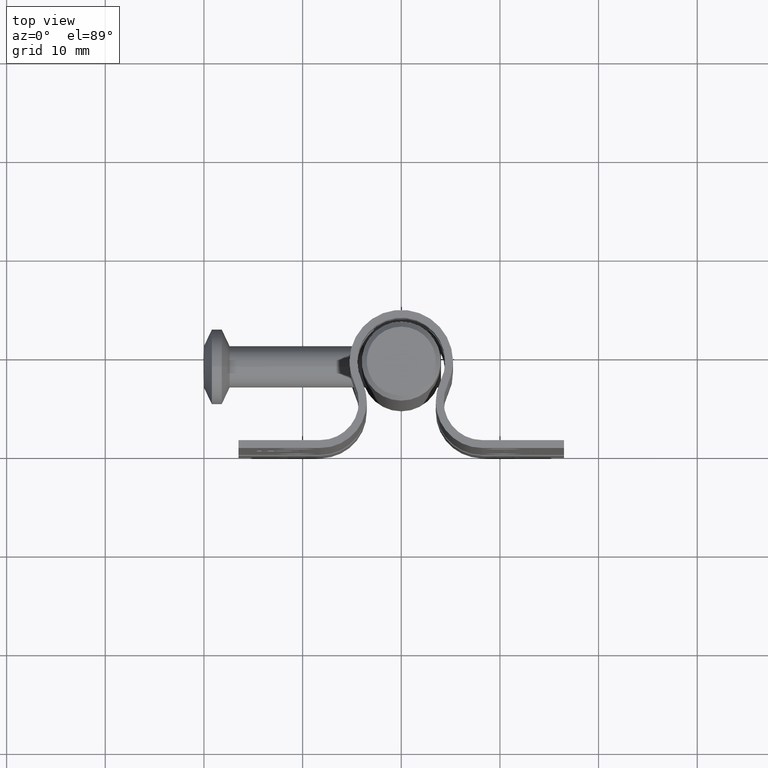
[diagram: clean part render]
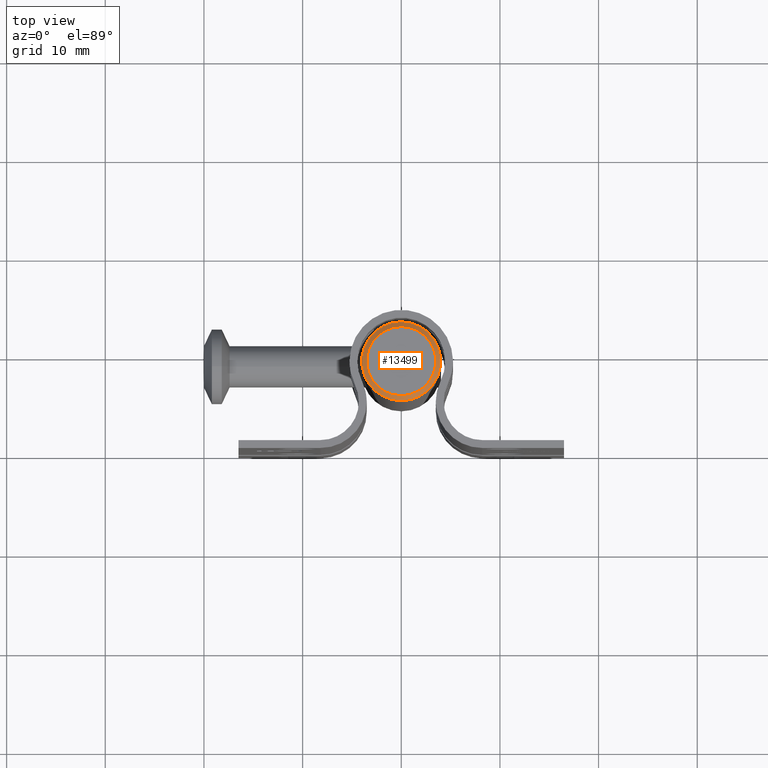
[diagram: same view with one face highlighted and labeled with its STEP entity id]
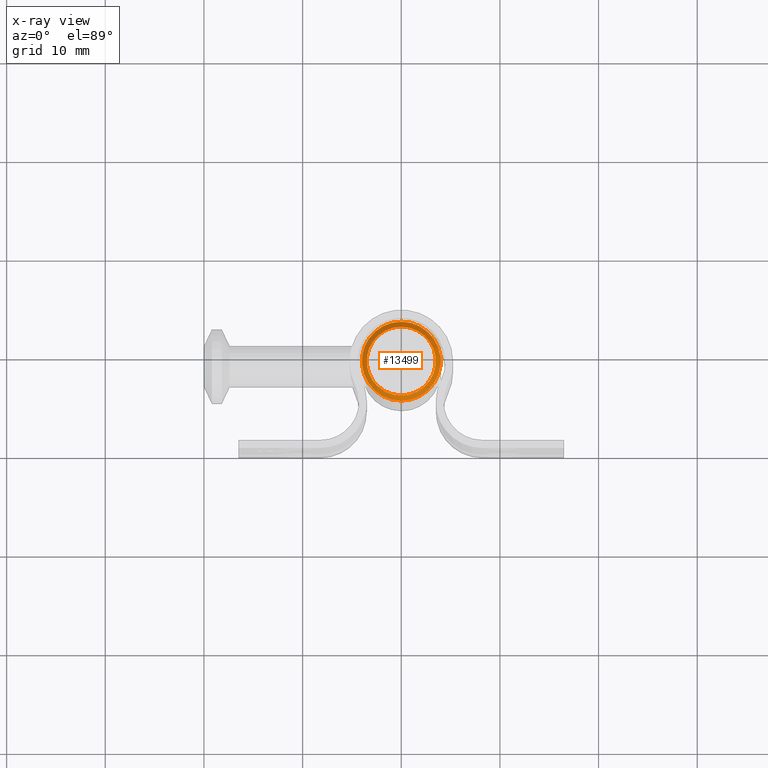
[diagram: x-ray of the same camera — body ghosted, the highlighted face saturated]
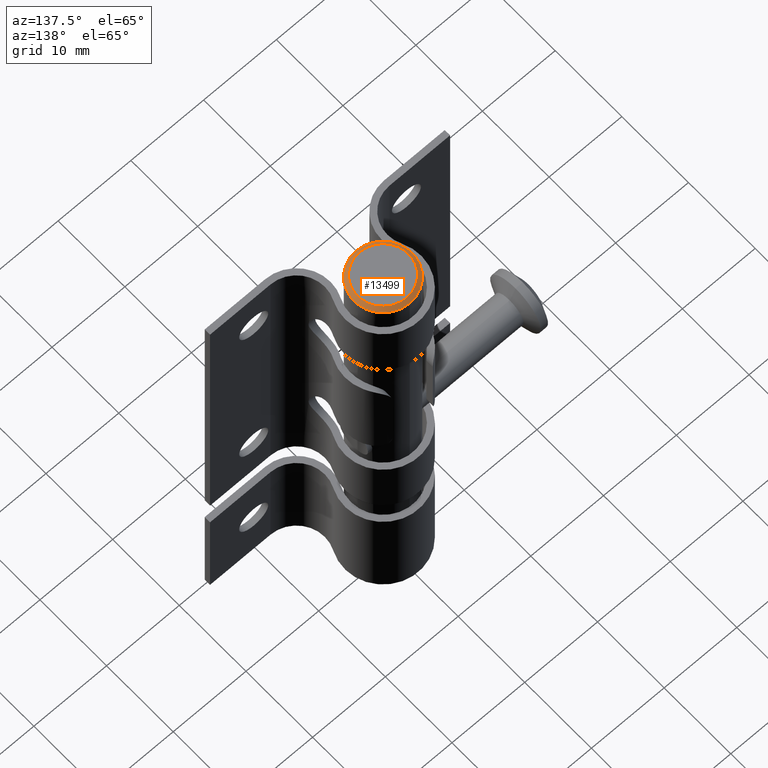
[diagram: same view with one face highlighted and labeled with its STEP entity id]
A machine part, top view. The second image highlights one B-rep face of the part: STEP entity #13499.
The next image is the same camera in x-ray: the body ghosted, the highlighted face saturated — about 0% of this face is hidden behind the body in this view.
A second angle (auxiliary view) of the same face is appended — the face is thin or edge-on in the first view.
In plain terms, the highlighted conical surface has half-angle 45 deg.
Its self-contained STEP definition (entity closure, byte-faithful):
#1370 = AXIS2_PLACEMENT_3D ( 'NONE', #13442, #5231, #12358 ) ;
#1479 = ORIENTED_EDGE ( 'NONE', *, *, #13183, .F. ) ;
#2461 = AXIS2_PLACEMENT_3D ( 'NONE', #10681, #11832, #14280 ) ;
#2890 = EDGE_CURVE ( 'NONE', #14296, #14296, #11436, .T. ) ;
#3707 = ORIENTED_EDGE ( 'NONE', *, *, #2890, .F. ) ;
#3866 = CARTESIAN_POINT ( 'NONE',  ( 0.000000000000000000, 0.000000000000000000, 31.00000000000000355 ) ) ;
#3878 = CARTESIAN_POINT ( 'NONE',  ( 3.499999999999996003, 0.000000000000000000, 31.50000000000000000 ) ) ;
#4168 = DIRECTION ( 'NONE',  ( 1.000000000000000000, 0.000000000000000000, 0.000000000000000000 ) ) ;
#5231 = DIRECTION ( 'NONE',  ( 0.000000000000000000, 0.000000000000000000, -1.000000000000000000 ) ) ;
#5932 = CONICAL_SURFACE ( 'NONE', #1370, 3.499999999999996003, 0.7853981633974552734 ) ;
#7403 = FACE_BOUND ( 'NONE', #14753, .T. ) ;
#8288 = VERTEX_POINT ( 'NONE', #9754 ) ;
#8902 = AXIS2_PLACEMENT_3D ( 'NONE', #3866, #13200, #4168 ) ;
#9754 = CARTESIAN_POINT ( 'NONE',  ( 4.000000000000000000, 0.000000000000000000, 31.00000000000000355 ) ) ;
#10417 = EDGE_LOOP ( 'NONE', ( #1479 ) ) ;
#10681 = CARTESIAN_POINT ( 'NONE',  ( 0.000000000000000000, 0.000000000000000000, 31.50000000000000000 ) ) ;
#10874 = FACE_OUTER_BOUND ( 'NONE', #10417, .T. ) ;
#11436 = CIRCLE ( 'NONE', #2461, 3.499999999999996003 ) ;
#11832 = DIRECTION ( 'NONE',  ( 0.000000000000000000, 0.000000000000000000, 1.000000000000000000 ) ) ;
#12358 = DIRECTION ( 'NONE',  ( -1.000000000000000000, 0.000000000000000000, 0.000000000000000000 ) ) ;
#13183 = EDGE_CURVE ( 'NONE', #8288, #8288, #13429, .T. ) ;
#13200 = DIRECTION ( 'NONE',  ( 0.000000000000000000, 0.000000000000000000, -1.000000000000000000 ) ) ;
#13429 = CIRCLE ( 'NONE', #8902, 4.000000000000000000 ) ;
#13442 = CARTESIAN_POINT ( 'NONE',  ( 0.000000000000000000, 0.000000000000000000, 31.50000000000000000 ) ) ;
#13499 = ADVANCED_FACE ( 'NONE', ( #10874, #7403 ), #5932, .T. ) ;
#14280 = DIRECTION ( 'NONE',  ( 1.000000000000000000, 0.000000000000000000, 0.000000000000000000 ) ) ;
#14296 = VERTEX_POINT ( 'NONE', #3878 ) ;
#14753 = EDGE_LOOP ( 'NONE', ( #3707 ) ) ;